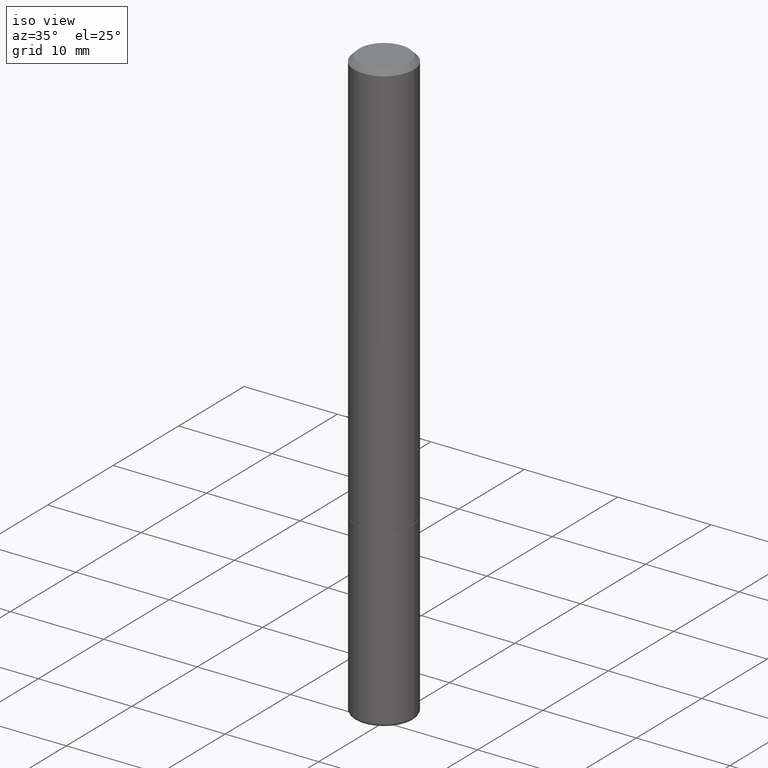
[diagram: clean part render]
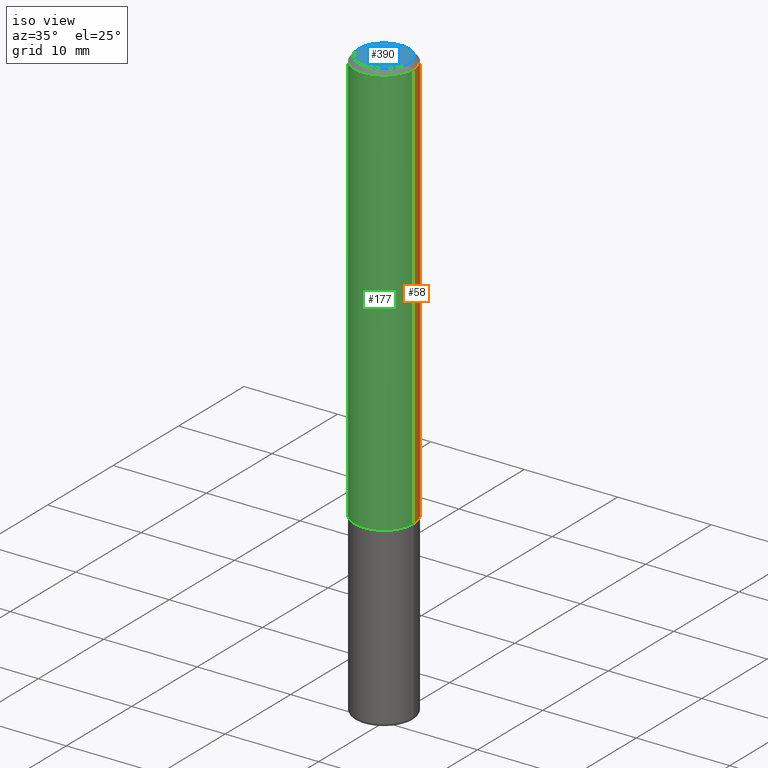
[diagram: same view with three faces highlighted in distinct colors, each labeled with its STEP entity id]
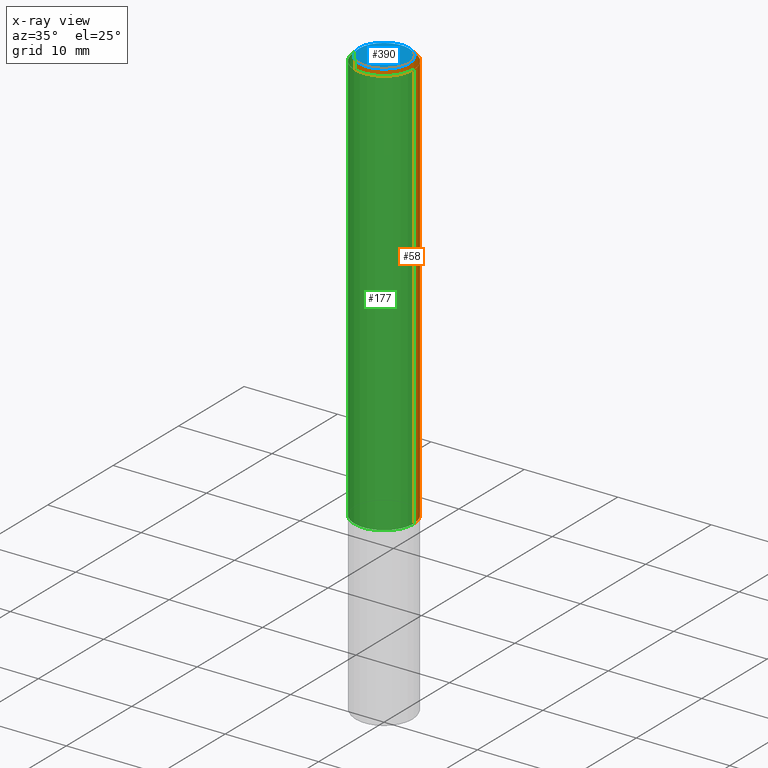
[diagram: x-ray of the same camera — body ghosted, the three highlighted faces saturated]
A machine part, iso view with three faces highlighted in distinct colors.
The next image is the same camera in x-ray (body ghosted, the three faces saturated) — at least one of them is partly hidden behind the body in this view.
Their STEP definitions:

[orange] entity #58 — the highlighted cylindrical surface (edge-blend (fillet) strip) has radius 3.175 mm, axis along (-0, 0, 1).
#4 = CIRCLE ( 'NONE', #275, 0.1250000000000001943 ) ;
#8 = DIRECTION ( 'NONE',  ( 1.000000000000000000, -6.982962677686267499E-15, 0.000000000000000000 ) ) ;
#17 = VERTEX_POINT ( 'NONE', #248 ) ;
#58 = ADVANCED_FACE ( 'NONE', ( #292 ), #388, .T. ) ;
#60 = LINE ( 'NONE', #293, #386 ) ;
#66 = AXIS2_PLACEMENT_3D ( 'NONE', #323, #298, #173 ) ;
#72 = EDGE_CURVE ( 'NONE', #212, #17, #60, .T. ) ;
#76 = VERTEX_POINT ( 'NONE', #313 ) ;
#85 = DIRECTION ( 'NONE',  ( -2.445468806185136597E-29, 3.491481338843145583E-15, 1.000000000000000000 ) ) ;
#145 = AXIS2_PLACEMENT_3D ( 'NONE', #350, #85, #252 ) ;
#163 = ORIENTED_EDGE ( 'NONE', *, *, #239, .T. ) ;
#169 = CARTESIAN_POINT ( 'NONE',  ( 4.277124942017804562E-29, -6.106600861636661664E-15, -1.749000000000000110 ) ) ;
#173 = DIRECTION ( 'NONE',  ( 1.000000000000000000, -6.982962677686267499E-15, 0.000000000000000000 ) ) ;
#194 = DIRECTION ( 'NONE',  ( -2.445468806185136877E-29, 3.491481338843145188E-15, 1.000000000000000000 ) ) ;
#212 = VERTEX_POINT ( 'NONE', #233 ) ;
#233 = CARTESIAN_POINT ( 'NONE',  ( 0.1250000000000001943, -6.979471196347446580E-15, -1.749000000000000110 ) ) ;
#239 = EDGE_CURVE ( 'NONE', #369, #76, #363, .T. ) ;
#244 = EDGE_CURVE ( 'NONE', #17, #76, #289, .T. ) ;
#248 = CARTESIAN_POINT ( 'NONE',  ( 0.1249999999999999584, -9.273918764983043491E-16, -0.02000000000000006287 ) ) ;
#252 = DIRECTION ( 'NONE',  ( 1.000000000000000000, -6.982962677686267499E-15, 4.876176775795936353E-29 ) ) ;
#270 = DIRECTION ( 'NONE',  ( -2.445468806185136597E-29, 3.491481338843145583E-15, 1.000000000000000000 ) ) ;
#274 = VECTOR ( 'NONE', #395, 39.37007874015748143 ) ;
#275 = AXIS2_PLACEMENT_3D ( 'NONE', #169, #270, #8 ) ;
#289 = CIRCLE ( 'NONE', #66, 0.1249999999999999584 ) ;
#292 = FACE_OUTER_BOUND ( 'NONE', #340, .T. ) ;
#293 = CARTESIAN_POINT ( 'NONE',  ( 0.1250000000000000555, -8.728703347107838319E-16, 6.095220969744923244E-30 ) ) ;
#298 = DIRECTION ( 'NONE',  ( -2.445468806185136597E-29, 3.491481338843145583E-15, 1.000000000000000000 ) ) ;
#302 = CARTESIAN_POINT ( 'NONE',  ( -0.1250000000000001943, -2.200036824506633304E-15, -1.749000000000000110 ) ) ;
#306 = ORIENTED_EDGE ( 'NONE', *, *, #72, .F. ) ;
#313 = CARTESIAN_POINT ( 'NONE',  ( -0.1249999999999999584, 8.030407079339200406E-16, -0.02000000000000006287 ) ) ;
#323 = CARTESIAN_POINT ( 'NONE',  ( 4.890937612370288923E-31, -6.982962677686312563E-17, -0.02000000000000006287 ) ) ;
#328 = CARTESIAN_POINT ( 'NONE',  ( -0.1250000000000000555, 8.881784197001256268E-16, -6.148668862818635730E-30 ) ) ;
#340 = EDGE_LOOP ( 'NONE', ( #403, #163, #372, #306 ) ) ;
#350 = CARTESIAN_POINT ( 'NONE',  ( 0.000000000000000000, 0.000000000000000000, 0.000000000000000000 ) ) ;
#359 = EDGE_CURVE ( 'NONE', #212, #369, #4, .T. ) ;
#363 = LINE ( 'NONE', #328, #274 ) ;
#369 = VERTEX_POINT ( 'NONE', #302 ) ;
#372 = ORIENTED_EDGE ( 'NONE', *, *, #244, .F. ) ;
#386 = VECTOR ( 'NONE', #194, 39.37007874015748143 ) ;
#388 = CYLINDRICAL_SURFACE ( 'NONE', #145, 0.1250000000000000555 ) ;
#395 = DIRECTION ( 'NONE',  ( -2.445468806185136877E-29, 3.491481338843145188E-15, 1.000000000000000000 ) ) ;
#403 = ORIENTED_EDGE ( 'NONE', *, *, #359, .T. ) ;

[blue] entity #390 — the highlighted planar face has unit normal (0, -0, -1).
#2 = DIRECTION ( 'NONE',  ( -2.445468806185136597E-29, 3.491481338843145583E-15, 1.000000000000000000 ) ) ;
#21 = VERTEX_POINT ( 'NONE', #342 ) ;
#39 = EDGE_LOOP ( 'NONE', ( #335, #143 ) ) ;
#52 = DIRECTION ( 'NONE',  ( 1.000000000000000000, -6.982962677686267499E-15, 4.874400871621236533E-29 ) ) ;
#64 = DIRECTION ( 'NONE',  ( 2.438088387897960049E-29, -3.491481338843145188E-15, -1.000000000000000000 ) ) ;
#78 = AXIS2_PLACEMENT_3D ( 'NONE', #92, #2, #52 ) ;
#82 = DIRECTION ( 'NONE',  ( -1.000000000000000000, 6.982962677686265922E-15, -4.876176775795935793E-29 ) ) ;
#86 = CIRCLE ( 'NONE', #78, 0.1050000000000000377 ) ;
#92 = CARTESIAN_POINT ( 'NONE',  ( 1.252621697202263706E-45, -1.788411804456536750E-31, -5.122214988120493535E-17 ) ) ;
#94 = CARTESIAN_POINT ( 'NONE',  ( 1.252621697202263706E-45, -1.788411804456536750E-31, -5.122214988120493535E-17 ) ) ;
#109 = VERTEX_POINT ( 'NONE', #187 ) ;
#122 = EDGE_CURVE ( 'NONE', #21, #109, #86, .T. ) ;
#136 = PLANE ( 'NONE',  #296 ) ;
#143 = ORIENTED_EDGE ( 'NONE', *, *, #149, .T. ) ;
#149 = EDGE_CURVE ( 'NONE', #109, #21, #414, .T. ) ;
#159 = DIRECTION ( 'NONE',  ( 1.000000000000000000, -6.982962677686267499E-15, 4.874400871621236533E-29 ) ) ;
#187 = CARTESIAN_POINT ( 'NONE',  ( 0.1050000000000000377, -8.238720831321576644E-16, -5.122214988119949344E-17 ) ) ;
#208 = AXIS2_PLACEMENT_3D ( 'NONE', #94, #319, #159 ) ;
#231 = CARTESIAN_POINT ( 'NONE',  ( 7.332110811570581229E-16, 0.1050000000000000377, -3.922166155191328542E-16 ) ) ;
#296 = AXIS2_PLACEMENT_3D ( 'NONE', #231, #64, #82 ) ;
#319 = DIRECTION ( 'NONE',  ( -2.445468806185136597E-29, 3.491481338843145583E-15, 1.000000000000000000 ) ) ;
#335 = ORIENTED_EDGE ( 'NONE', *, *, #122, .T. ) ;
#342 = CARTESIAN_POINT ( 'NONE',  ( -0.1050000000000000377, 7.681258945454890818E-16, -5.122214988121018004E-17 ) ) ;
#355 = FACE_OUTER_BOUND ( 'NONE', #39, .T. ) ;
#390 = ADVANCED_FACE ( 'NONE', ( #355 ), #136, .F. ) ;
#414 = CIRCLE ( 'NONE', #208, 0.1050000000000000377 ) ;

[green] entity #177 — the highlighted cylindrical surface (edge-blend (fillet) strip) has radius 3.175 mm, axis along (-0, 0, 1).
#16 = EDGE_CURVE ( 'NONE', #369, #212, #61, .T. ) ;
#17 = VERTEX_POINT ( 'NONE', #248 ) ;
#41 = CIRCLE ( 'NONE', #236, 0.1249999999999999584 ) ;
#60 = LINE ( 'NONE', #293, #386 ) ;
#61 = CIRCLE ( 'NONE', #377, 0.1250000000000001943 ) ;
#72 = EDGE_CURVE ( 'NONE', #212, #17, #60, .T. ) ;
#76 = VERTEX_POINT ( 'NONE', #313 ) ;
#112 = DIRECTION ( 'NONE',  ( 1.000000000000000000, -6.982962677686267499E-15, 0.000000000000000000 ) ) ;
#115 = DIRECTION ( 'NONE',  ( 1.000000000000000000, -6.982962677686267499E-15, 0.000000000000000000 ) ) ;
#123 = CARTESIAN_POINT ( 'NONE',  ( 0.000000000000000000, 0.000000000000000000, 0.000000000000000000 ) ) ;
#164 = AXIS2_PLACEMENT_3D ( 'NONE', #123, #188, #382 ) ;
#177 = ADVANCED_FACE ( 'NONE', ( #353 ), #291, .T. ) ;
#188 = DIRECTION ( 'NONE',  ( -2.445468806185136597E-29, 3.491481338843145583E-15, 1.000000000000000000 ) ) ;
#194 = DIRECTION ( 'NONE',  ( -2.445468806185136877E-29, 3.491481338843145188E-15, 1.000000000000000000 ) ) ;
#209 = CARTESIAN_POINT ( 'NONE',  ( 4.890937612370288923E-31, -6.982962677686312563E-17, -0.02000000000000006287 ) ) ;
#211 = ORIENTED_EDGE ( 'NONE', *, *, #417, .F. ) ;
#212 = VERTEX_POINT ( 'NONE', #233 ) ;
#217 = DIRECTION ( 'NONE',  ( -2.445468806185136597E-29, 3.491481338843145583E-15, 1.000000000000000000 ) ) ;
#233 = CARTESIAN_POINT ( 'NONE',  ( 0.1250000000000001943, -6.979471196347446580E-15, -1.749000000000000110 ) ) ;
#236 = AXIS2_PLACEMENT_3D ( 'NONE', #209, #217, #115 ) ;
#239 = EDGE_CURVE ( 'NONE', #369, #76, #363, .T. ) ;
#248 = CARTESIAN_POINT ( 'NONE',  ( 0.1249999999999999584, -9.273918764983043491E-16, -0.02000000000000006287 ) ) ;
#273 = ORIENTED_EDGE ( 'NONE', *, *, #239, .F. ) ;
#274 = VECTOR ( 'NONE', #395, 39.37007874015748143 ) ;
#279 = ORIENTED_EDGE ( 'NONE', *, *, #72, .T. ) ;
#291 = CYLINDRICAL_SURFACE ( 'NONE', #164, 0.1250000000000000555 ) ;
#293 = CARTESIAN_POINT ( 'NONE',  ( 0.1250000000000000555, -8.728703347107838319E-16, 6.095220969744923244E-30 ) ) ;
#302 = CARTESIAN_POINT ( 'NONE',  ( -0.1250000000000001943, -2.200036824506633304E-15, -1.749000000000000110 ) ) ;
#309 = EDGE_LOOP ( 'NONE', ( #273, #398, #279, #211 ) ) ;
#313 = CARTESIAN_POINT ( 'NONE',  ( -0.1249999999999999584, 8.030407079339200406E-16, -0.02000000000000006287 ) ) ;
#328 = CARTESIAN_POINT ( 'NONE',  ( -0.1250000000000000555, 8.881784197001256268E-16, -6.148668862818635730E-30 ) ) ;
#353 = FACE_OUTER_BOUND ( 'NONE', #309, .T. ) ;
#363 = LINE ( 'NONE', #328, #274 ) ;
#369 = VERTEX_POINT ( 'NONE', #302 ) ;
#370 = DIRECTION ( 'NONE',  ( -2.445468806185136597E-29, 3.491481338843145583E-15, 1.000000000000000000 ) ) ;
#373 = CARTESIAN_POINT ( 'NONE',  ( 4.277124942017804562E-29, -6.106600861636661664E-15, -1.749000000000000110 ) ) ;
#377 = AXIS2_PLACEMENT_3D ( 'NONE', #373, #370, #112 ) ;
#382 = DIRECTION ( 'NONE',  ( 1.000000000000000000, -6.982962677686267499E-15, 4.876176775795936353E-29 ) ) ;
#386 = VECTOR ( 'NONE', #194, 39.37007874015748143 ) ;
#395 = DIRECTION ( 'NONE',  ( -2.445468806185136877E-29, 3.491481338843145188E-15, 1.000000000000000000 ) ) ;
#398 = ORIENTED_EDGE ( 'NONE', *, *, #16, .T. ) ;
#417 = EDGE_CURVE ( 'NONE', #76, #17, #41, .T. ) ;